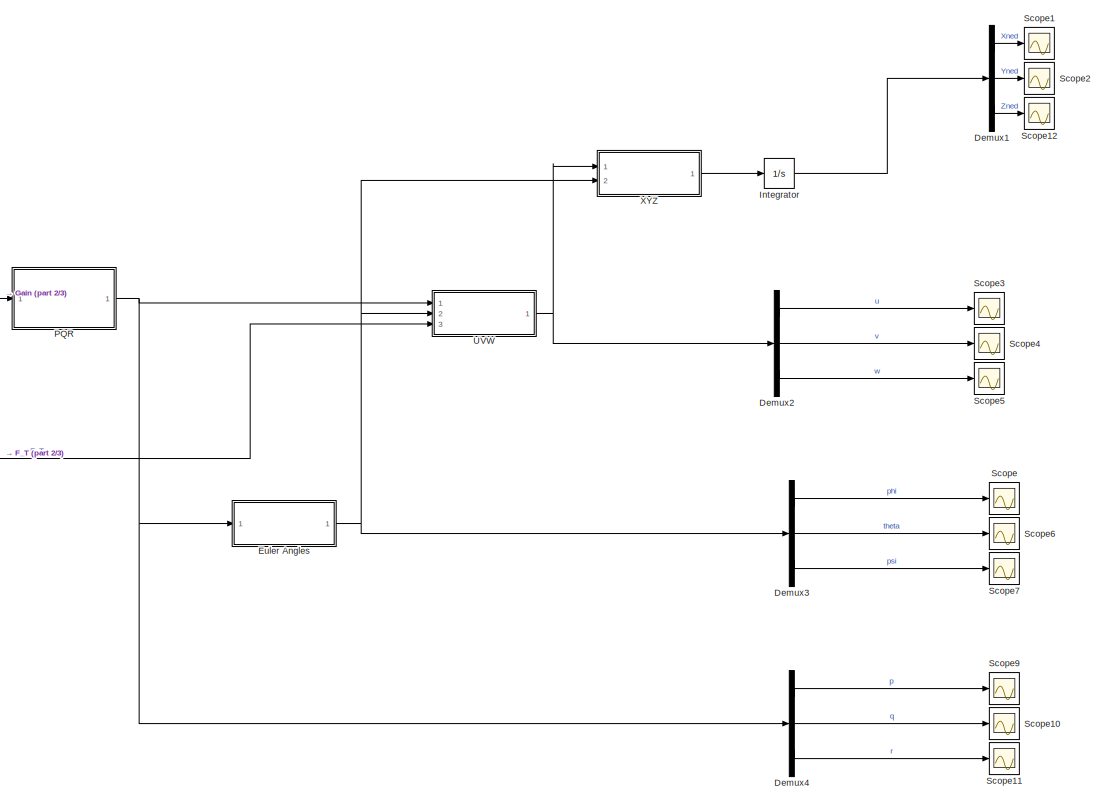
[diagram: root canvas - part 1/3, right side, full height]
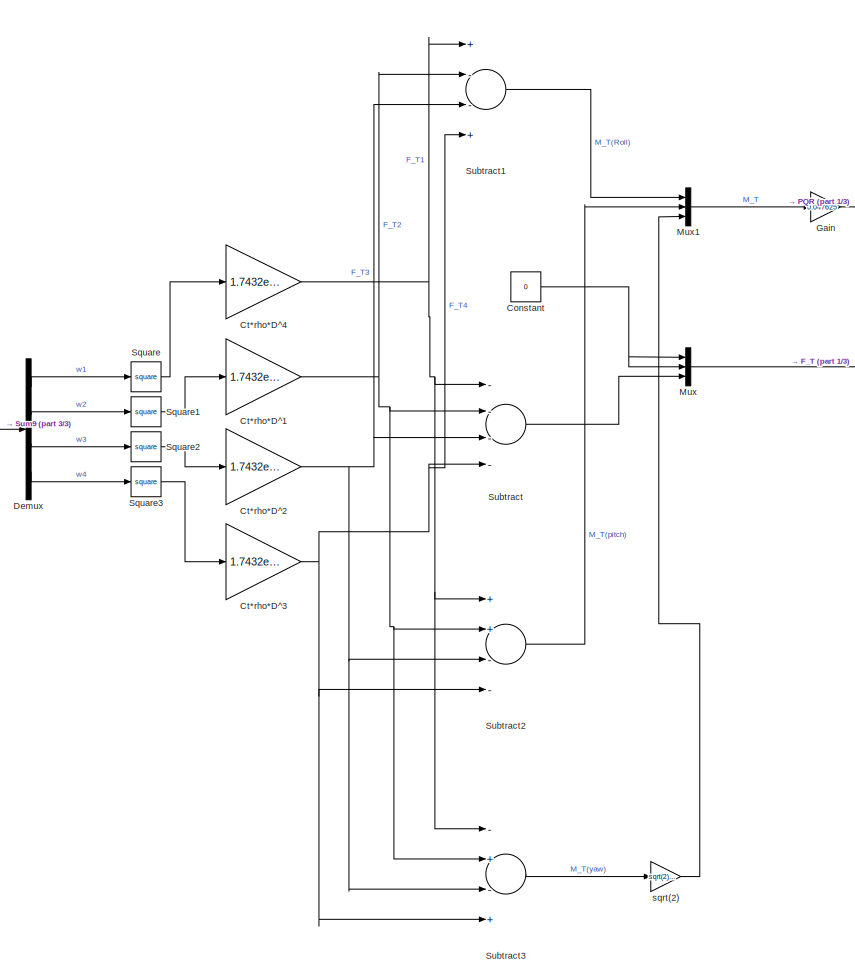
[diagram: root canvas - part 2/3, center side, full height]
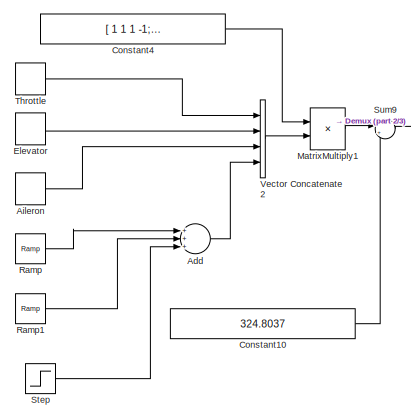
[diagram: root canvas - part 3/3, middle left region]
MODEL slx_c13ecf1b8bd2
KIND model
CONFIG AbsTol = auto
CONFIG EnableMultiTasking = off
CONFIG FixedStep = auto
CONFIG MaxStep = auto
CONFIG MinStep = auto
CONFIG RelTol = 1e-3
CONFIG SampleTimeConstraint = Unconstrained
CONFIG Solver = VariableStepAuto
CONFIG SolverName = VariableStepAuto
CONFIG StartTime = 0.0
CONFIG StopTime = 6
BLOCK [Sum] Add
  InputSameDT = off
  Inputs = +++
  OutDataTypeStr = Inherit: Inherit via internal rule
  Ports = [3, 1]
  SaturateOnIntegerOverflow = off
BLOCK [DiscretePulseGenerator] Aileron
  Amplitude = 0
  Period = 8
  PhaseDelay = 1
  Ports = [0, 1]
  PulseType = Time based
  PulseWidth = 50
BLOCK [Constant] Constant
  Value = 0
BLOCK [Constant] Constant10
  Value = 324.8037
BLOCK [Constant] Constant4
  Value = [ 1 1 1 -1; 1 1 -1 1; 1 -1 -1 -1; -1 1  -1 1]
  VectorParams1D = off
BLOCK [Gain] Ct*rho*D^1
  Gain = 1.7432e-06
  OutDataTypeStr = Inherit: Inherit via internal rule
  ParamDataTypeStr = Inherit: Inherit via internal rule
  SaturateOnIntegerOverflow = off
BLOCK [Gain] Ct*rho*D^2
  Gain = 1.7432e-06
  OutDataTypeStr = Inherit: Inherit via internal rule
  ParamDataTypeStr = Inherit: Inherit via internal rule
  SaturateOnIntegerOverflow = off
BLOCK [Gain] Ct*rho*D^3
  Gain = 1.7432e-06
  OutDataTypeStr = Inherit: Inherit via internal rule
  ParamDataTypeStr = Inherit: Inherit via internal rule
  SaturateOnIntegerOverflow = off
BLOCK [Gain] Ct*rho*D^4
  Gain = 1.7432e-06
  OutDataTypeStr = Inherit: Inherit via internal rule
  ParamDataTypeStr = Inherit: Inherit via internal rule
  SaturateOnIntegerOverflow = off
BLOCK [Demux] Demux
  DisplayOption = bar
  Ports = [1, 4]
BLOCK [Demux] Demux1
  DisplayOption = bar
  Outputs = 3
  Ports = [1, 3]
BLOCK [Demux] Demux2
  DisplayOption = bar
  Outputs = 3
  Ports = [1, 3]
BLOCK [Demux] Demux3
  DisplayOption = bar
  Outputs = 3
  Ports = [1, 3]
BLOCK [Demux] Demux4
  DisplayOption = bar
  Outputs = 3
  Ports = [1, 3]
BLOCK [DiscretePulseGenerator] Elevator
  Amplitude = 0
  Period = 8
  PhaseDelay = 1
  Ports = [0, 1]
  PulseType = Time based
  PulseWidth = 50
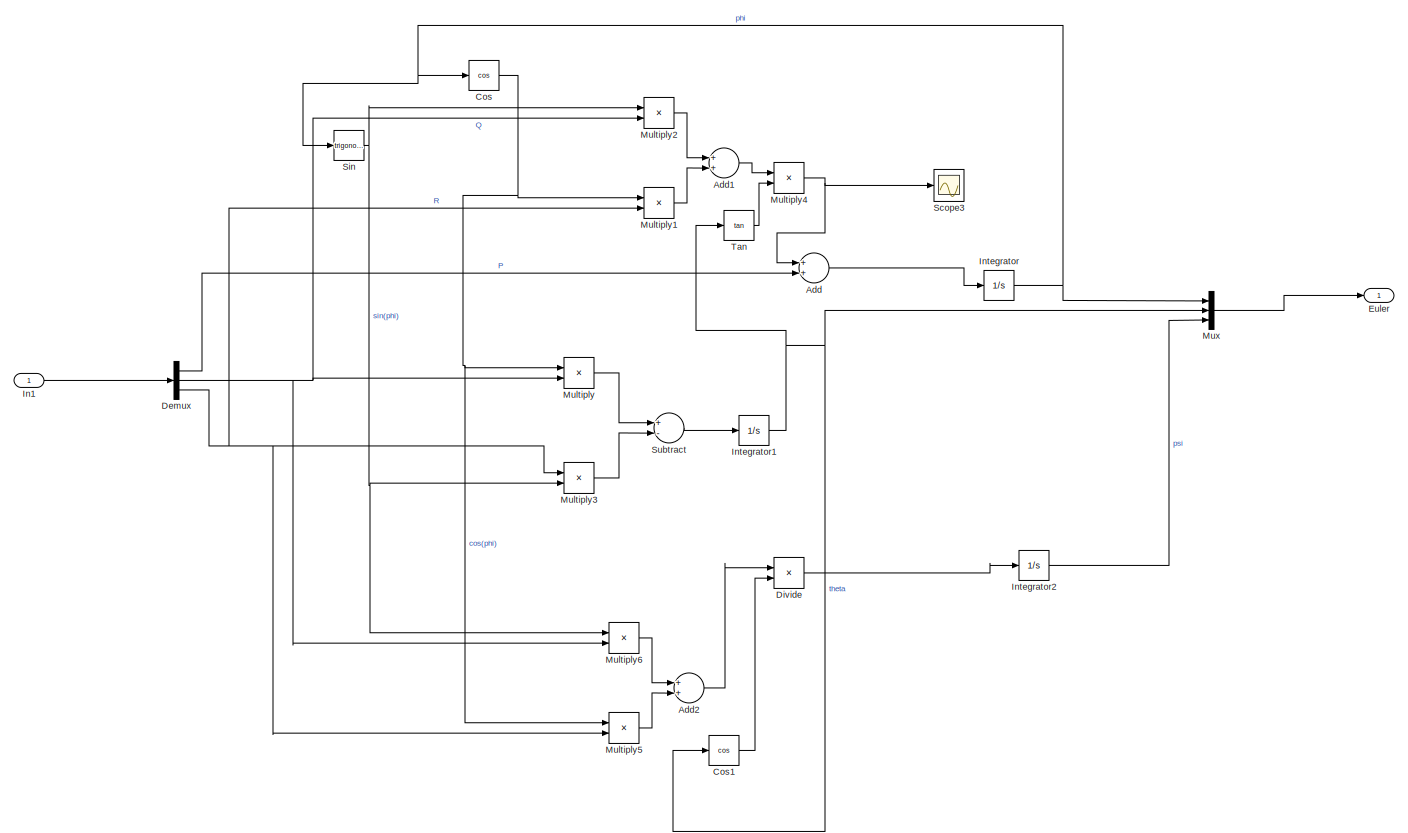
[diagram: Euler Angles - part 1/1, most of the canvas]
BLOCK [SubSystem] Euler Angles
  Ports = [1, 1]
  RequestExecContextInheritance = off
BLOCK [Sum] Euler Angles/Add
  InputSameDT = off
  OutDataTypeStr = Inherit: Inherit via internal rule
  Ports = [2, 1]
  SaturateOnIntegerOverflow = off
BLOCK [Sum] Euler Angles/Add1
  InputSameDT = off
  OutDataTypeStr = Inherit: Inherit via internal rule
  Ports = [2, 1]
  SaturateOnIntegerOverflow = off
BLOCK [Sum] Euler Angles/Add2
  InputSameDT = off
  OutDataTypeStr = Inherit: Inherit via internal rule
  Ports = [2, 1]
  SaturateOnIntegerOverflow = off
BLOCK [Trigonometry] Euler Angles/Cos
  Operator = cos
  Ports = [1, 1]
BLOCK [Trigonometry] Euler Angles/Cos1
  Operator = cos
  Ports = [1, 1]
BLOCK [Demux] Euler Angles/Demux
  DisplayOption = bar
  Outputs = 3
  Ports = [1, 3]
BLOCK [Product] Euler Angles/Divide
  InputSameDT = off
  Inputs = */
  OutDataTypeStr = Inherit: Inherit via internal rule
  Ports = [2, 1]
  RndMeth = Floor
  SaturateOnIntegerOverflow = off
BLOCK [Outport] Euler Angles/Euler
  IconDisplay = Port number
  VectorParamsAs1DForOutWhenUnconnected = off
BLOCK [Inport] Euler Angles/In1
  IconDisplay = Port number
BLOCK [Integrator] Euler Angles/Integrator
  Ports = [1, 1]
BLOCK [Integrator] Euler Angles/Integrator1
  Ports = [1, 1]
BLOCK [Integrator] Euler Angles/Integrator2
  Ports = [1, 1]
BLOCK [Product] Euler Angles/Multiply
  InputSameDT = off
  OutDataTypeStr = Inherit: Inherit via internal rule
  Ports = [2, 1]
  RndMeth = Floor
  SaturateOnIntegerOverflow = off
BLOCK [Product] Euler Angles/Multiply1
  InputSameDT = off
  OutDataTypeStr = Inherit: Inherit via internal rule
  Ports = [2, 1]
  RndMeth = Floor
  SaturateOnIntegerOverflow = off
BLOCK [Product] Euler Angles/Multiply2
  InputSameDT = off
  OutDataTypeStr = Inherit: Inherit via internal rule
  Ports = [2, 1]
  RndMeth = Floor
  SaturateOnIntegerOverflow = off
BLOCK [Product] Euler Angles/Multiply3
  InputSameDT = off
  OutDataTypeStr = Inherit: Inherit via internal rule
  Ports = [2, 1]
  RndMeth = Floor
  SaturateOnIntegerOverflow = off
BLOCK [Product] Euler Angles/Multiply4
  InputSameDT = off
  OutDataTypeStr = Inherit: Inherit via internal rule
  Ports = [2, 1]
  RndMeth = Floor
  SaturateOnIntegerOverflow = off
BLOCK [Product] Euler Angles/Multiply5
  InputSameDT = off
  OutDataTypeStr = Inherit: Inherit via internal rule
  Ports = [2, 1]
  RndMeth = Floor
  SaturateOnIntegerOverflow = off
BLOCK [Product] Euler Angles/Multiply6
  InputSameDT = off
  OutDataTypeStr = Inherit: Inherit via internal rule
  Ports = [2, 1]
  RndMeth = Floor
  SaturateOnIntegerOverflow = off
BLOCK [Mux] Euler Angles/Mux
  DisplayOption = bar
  Inputs = 3
  Ports = [3, 1]
BLOCK [Scope] Euler Angles/Scope3
  Floating = off
  NumInputPorts = 1
  Ports = [1]
  ScopeSpecificationString = Simulink.scopes.TimeScopeBlockCfg('CurrentConfiguration', extmgr.ConfigurationSet(extmgr.Configuration('Core','General UI',true),extmgr.Configuration('Core','Source UI',true),extmgr.Configuration('Sources','WiredSimulink',true,'DataLoggingVariableName','ScopeData15'),extmgr.Configuration('Visuals','Time Domain',true,'SerializedDisplays',{struct('MinYLimReal','-1.00000','MaxYLimReal','1.00000','YLa...<+1369ch>
BLOCK [Trigonometry] Euler Angles/Sin
  Ports = [1, 1]
BLOCK [Sum] Euler Angles/Subtract
  InputSameDT = off
  Inputs = +-
  OutDataTypeStr = Inherit: Inherit via internal rule
  Ports = [2, 1]
  SaturateOnIntegerOverflow = off
BLOCK [Trigonometry] Euler Angles/Tan
  Operator = tan
  Ports = [1, 1]
BLOCK [Gain] Gain
  Gain = 0.047625
  OutDataTypeStr = Inherit: Inherit via internal rule
  ParamDataTypeStr = Inherit: Inherit via internal rule
  SaturateOnIntegerOverflow = off
BLOCK [Integrator] Integrator
  Ports = [1, 1]
BLOCK [Product] MatrixMultiply1
  InputSameDT = off
  Multiplication = Matrix(*)
  OutDataTypeStr = Inherit: Inherit via internal rule
  Ports = [2, 1]
  RndMeth = Floor
  SaturateOnIntegerOverflow = off
BLOCK [Mux] Mux
  DisplayOption = bar
  Inputs = 3
  Ports = [3, 1]
BLOCK [Mux] Mux1
  DisplayOption = bar
  Inputs = 3
  Ports = [3, 1]
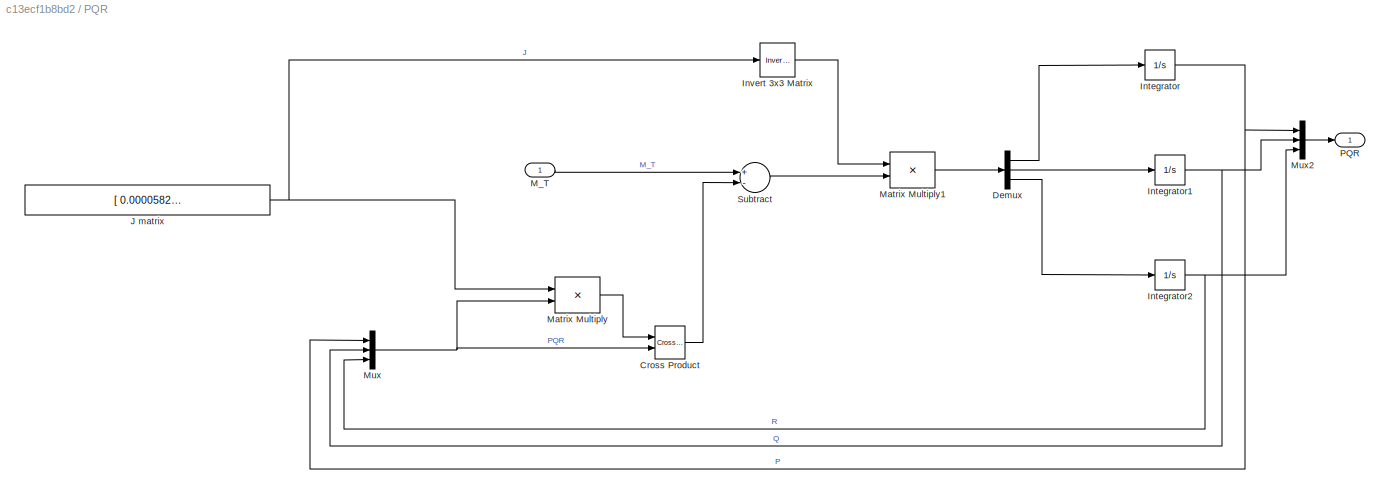
BLOCK [SubSystem] PQR
  Ports = [1, 1]
  RequestExecContextInheritance = off
BLOCK [Reference] PQR/Cross Product  REF=vrlib/Utilities/Cross Product
  Ports = [2, 1]
  SourceBlock = vrlib/Utilities/Cross Product
  SourceProductBaseCode = SL
  SourceProductName = Simulink
  SourceType = Cross Product
BLOCK [Demux] PQR/Demux
  DisplayOption = bar
  Outputs = 3
  Ports = [1, 3]
BLOCK [Integrator] PQR/Integrator
  Ports = [1, 1]
BLOCK [Integrator] PQR/Integrator1
  Ports = [1, 1]
BLOCK [Integrator] PQR/Integrator2
  Ports = [1, 1]
BLOCK [Reference] PQR/Invert 3x3 Matrix  REF=aerolibutil/Invert 
3x3 Matrix
  Ports = [1, 1]
  SourceBlock = aerolibutil/Invert \n3x3 Matrix
  SourceProductBaseCode = AE
  SourceProductName = Aerospace Blockset
  SourceType = Invert 3x3 Matrix
BLOCK [Constant] PQR/J matrix
  Value = [ 0.0000582857 0 0; 0 0.0000716914 0; 0 0 0.0001];
BLOCK [Inport] PQR/M_T
  IconDisplay = Port number
BLOCK [Product] PQR/Matrix Multiply
  InputSameDT = off
  Multiplication = Matrix(*)
  OutDataTypeStr = Inherit: Inherit via internal rule
  Ports = [2, 1]
  RndMeth = Floor
  SaturateOnIntegerOverflow = off
BLOCK [Product] PQR/Matrix Multiply1
  InputSameDT = off
  Multiplication = Matrix(*)
  OutDataTypeStr = Inherit: Inherit via internal rule
  Ports = [2, 1]
  RndMeth = Floor
  SaturateOnIntegerOverflow = off
BLOCK [Mux] PQR/Mux
  DisplayOption = bar
  Inputs = 3
  Ports = [3, 1]
BLOCK [Mux] PQR/Mux2
  DisplayOption = bar
  Inputs = 3
  Ports = [3, 1]
BLOCK [Outport] PQR/PQR
  IconDisplay = Port number
  VectorParamsAs1DForOutWhenUnconnected = off
BLOCK [Sum] PQR/Subtract
  InputSameDT = off
  Inputs = +-
  OutDataTypeStr = Inherit: Inherit via internal rule
  Ports = [2, 1]
  SaturateOnIntegerOverflow = off
BLOCK [Reference] Ramp  REF=simulink/Sources/Ramp
  Ports = [0, 1]
  SourceBlock = simulink/Sources/Ramp
  SourceProductBaseCode = SL
  SourceProductName = Simulink
  SourceType = Ramp
BLOCK [Reference] Ramp1  REF=simulink/Sources/Ramp
  Ports = [0, 1]
  SourceBlock = simulink/Sources/Ramp
  SourceProductBaseCode = SL
  SourceProductName = Simulink
  SourceType = Ramp
BLOCK [Scope] Scope
  Floating = off
  NumInputPorts = 1
  Ports = [1]
  ScopeSpecificationString = Simulink.scopes.TimeScopeBlockCfg('CurrentConfiguration', extmgr.ConfigurationSet(extmgr.Configuration('Core','General UI',true),extmgr.Configuration('Core','Source UI',true),extmgr.Configuration('Sources','WiredSimulink',true,'DataLoggingVariableName','ScopeData6'),extmgr.Configuration('Visuals','Time Domain',true,'SerializedDisplays',{struct('MinYLimReal','-0.0000000000000005','MaxYLimReal','0.0...<+1450ch>
BLOCK [Scope] Scope1
  Floating = off
  NumInputPorts = 1
  Ports = [1]
  ScopeSpecificationString = Simulink.scopes.TimeScopeBlockCfg('CurrentConfiguration', extmgr.ConfigurationSet(extmgr.Configuration('Core','General UI',true),extmgr.Configuration('Core','Source UI',true),extmgr.Configuration('Sources','WiredSimulink',true),extmgr.Configuration('Visuals','Time Domain',true,'SerializedDisplays',{struct('MinYLimReal','-0.00000000000034','MaxYLimReal','0.00000000000004','YLabelReal','','MinYLimMa...<+1396ch>
BLOCK [Scope] Scope10
  Floating = off
  NumInputPorts = 1
  Ports = [1]
  ScopeSpecificationString = Simulink.scopes.TimeScopeBlockCfg('CurrentConfiguration', extmgr.ConfigurationSet(extmgr.Configuration('Core','General UI',true),extmgr.Configuration('Core','Source UI',true),extmgr.Configuration('Sources','WiredSimulink',true,'DataLoggingVariableName','ScopeData10'),extmgr.Configuration('Visuals','Time Domain',true,'SerializedDisplays',{struct('MinYLimReal','-0.0000000000000015','MaxYLimReal','0....<+1449ch>
BLOCK [Scope] Scope11
  Floating = off
  NumInputPorts = 1
  Ports = [1]
  ScopeSpecificationString = Simulink.scopes.TimeScopeBlockCfg('CurrentConfiguration', extmgr.ConfigurationSet(extmgr.Configuration('Core','General UI',true),extmgr.Configuration('Core','Source UI',true),extmgr.Configuration('Sources','WiredSimulink',true,'DataLoggingVariableName','ScopeData11'),extmgr.Configuration('Visuals','Time Domain',true,'SerializedDisplays',{struct('MinYLimReal','-0.03632','MaxYLimReal','0.32691','YLa...<+1361ch>
BLOCK [Scope] Scope12
  Floating = off
  NumInputPorts = 1
  Ports = [1]
  ScopeSpecificationString = Simulink.scopes.TimeScopeBlockCfg('CurrentConfiguration', extmgr.ConfigurationSet(extmgr.Configuration('Core','General UI',true),extmgr.Configuration('Core','Source UI',true),extmgr.Configuration('Sources','WiredSimulink',true,'DataLoggingVariableName','ScopeData1'),extmgr.Configuration('Visuals','Time Domain',true,'SerializedDisplays',{struct('MinYLimReal','-0.00409','MaxYLimReal','0.03683','YLab...<+1363ch>
BLOCK [Scope] Scope2
  Floating = off
  NumInputPorts = 1
  Ports = [1]
  ScopeSpecificationString = Simulink.scopes.TimeScopeBlockCfg('CurrentConfiguration', extmgr.ConfigurationSet(extmgr.Configuration('Core','General UI',true),extmgr.Configuration('Core','Source UI',true),extmgr.Configuration('Sources','WiredSimulink',true,'DataLoggingVariableName','ScopeData2'),extmgr.Configuration('Visuals','Time Domain',true,'SerializedDisplays',{struct('MinYLimReal','-0.0000000000000075','MaxYLimReal','0.0...<+1451ch>
BLOCK [Scope] Scope3
  Floating = off
  NumInputPorts = 1
  Ports = [1]
  ScopeSpecificationString = Simulink.scopes.TimeScopeBlockCfg('CurrentConfiguration', extmgr.ConfigurationSet(extmgr.Configuration('Core','General UI',true),extmgr.Configuration('Core','Source UI',true),extmgr.Configuration('Sources','WiredSimulink',true,'DataLoggingVariableName','ScopeData3'),extmgr.Configuration('Visuals','Time Domain',true,'SerializedDisplays',{struct('MinYLimReal','-0.00000000000017','MaxYLimReal','0.000...<+1432ch>
BLOCK [Scope] Scope4
  Floating = off
  NumInputPorts = 1
  Ports = [1]
  ScopeSpecificationString = Simulink.scopes.TimeScopeBlockCfg('CurrentConfiguration', extmgr.ConfigurationSet(extmgr.Configuration('Core','General UI',true),extmgr.Configuration('Core','Source UI',true),extmgr.Configuration('Sources','WiredSimulink',true,'DataLoggingVariableName','ScopeData4'),extmgr.Configuration('Visuals','Time Domain',true,'SerializedDisplays',{struct('MinYLimReal','-0.00000000000001','MaxYLimReal','0.000...<+1432ch>
BLOCK [Scope] Scope5
  Floating = off
  NumInputPorts = 1
  Ports = [1]
  ScopeSpecificationString = Simulink.scopes.TimeScopeBlockCfg('CurrentConfiguration', extmgr.ConfigurationSet(extmgr.Configuration('Core','General UI',true),extmgr.Configuration('Core','Source UI',true),extmgr.Configuration('Sources','WiredSimulink',true,'DataLoggingVariableName','ScopeData5'),extmgr.Configuration('Visuals','Time Domain',true,'SerializedDisplays',{struct('MinYLimReal','-0.00136','MaxYLimReal','0.01223','YLab...<+1388ch>
BLOCK [Scope] Scope6
  Floating = off
  NumInputPorts = 1
  Ports = [1]
  ScopeSpecificationString = Simulink.scopes.TimeScopeBlockCfg('CurrentConfiguration', extmgr.ConfigurationSet(extmgr.Configuration('Core','General UI',true),extmgr.Configuration('Core','Source UI',true),extmgr.Configuration('Sources','WiredSimulink',true,'DataLoggingVariableName','ScopeData7'),extmgr.Configuration('Visuals','Time Domain',true,'SerializedDisplays',{struct('MinYLimReal','-0.0000000000000009','MaxYLimReal','0.0...<+1452ch>
BLOCK [Scope] Scope7
  Floating = off
  NumInputPorts = 1
  Ports = [1]
  ScopeSpecificationString = Simulink.scopes.TimeScopeBlockCfg('CurrentConfiguration', extmgr.ConfigurationSet(extmgr.Configuration('Core','General UI',true),extmgr.Configuration('Core','Source UI',true),extmgr.Configuration('Sources','WiredSimulink',true,'DataLoggingVariableName','ScopeData8'),extmgr.Configuration('Visuals','Time Domain',true,'SerializedDisplays',{struct('MinYLimReal','-0.08466','MaxYLimReal','0.76192','YLab...<+1393ch>
BLOCK [Scope] Scope9
  Floating = off
  NumInputPorts = 1
  Ports = [1]
  ScopeSpecificationString = Simulink.scopes.TimeScopeBlockCfg('CurrentConfiguration', extmgr.ConfigurationSet(extmgr.Configuration('Core','General UI',true),extmgr.Configuration('Core','Source UI',true),extmgr.Configuration('Sources','WiredSimulink',true,'DataLoggingVariableName','ScopeData9'),extmgr.Configuration('Visuals','Time Domain',true,'SerializedDisplays',{struct('MinYLimReal','-0.00000000000000004','MaxYLimReal','0....<+1456ch>
BLOCK [Math] Square
  Operator = square
  Ports = [1, 1]
BLOCK [Math] Square1
  Operator = square
  Ports = [1, 1]
BLOCK [Math] Square2
  Operator = square
  Ports = [1, 1]
BLOCK [Math] Square3
  Operator = square
  Ports = [1, 1]
BLOCK [Step] Step
  After = -.25*4
  SampleTime = 0
  Time = 5
BLOCK [Sum] Subtract
  InputSameDT = off
  Inputs = ----
  OutDataTypeStr = Inherit: Inherit via internal rule
  Ports = [4, 1]
  SaturateOnIntegerOverflow = off
BLOCK [Sum] Subtract1
  InputSameDT = off
  Inputs = +--+
  OutDataTypeStr = Inherit: Inherit via internal rule
  Ports = [4, 1]
  SaturateOnIntegerOverflow = off
BLOCK [Sum] Subtract2
  InputSameDT = off
  Inputs = ++--
  OutDataTypeStr = Inherit: Inherit via internal rule
  Ports = [4, 1]
  SaturateOnIntegerOverflow = off
BLOCK [Sum] Subtract3
  InputSameDT = off
  Inputs = -+-+
  OutDataTypeStr = Inherit: Inherit via internal rule
  Ports = [4, 1]
  SaturateOnIntegerOverflow = off
BLOCK [Sum] Sum9
  IconShape = round
  InputSameDT = off
  Inputs = |++
  OutDataTypeStr = Inherit: Inherit via internal rule
  Ports = [2, 1]
  SaturateOnIntegerOverflow = off
BLOCK [DiscretePulseGenerator] Throttle
  Amplitude = 0
  Period = 8
  PhaseDelay = 1
  Ports = [0, 1]
  PulseType = Time based
  PulseWidth = 50
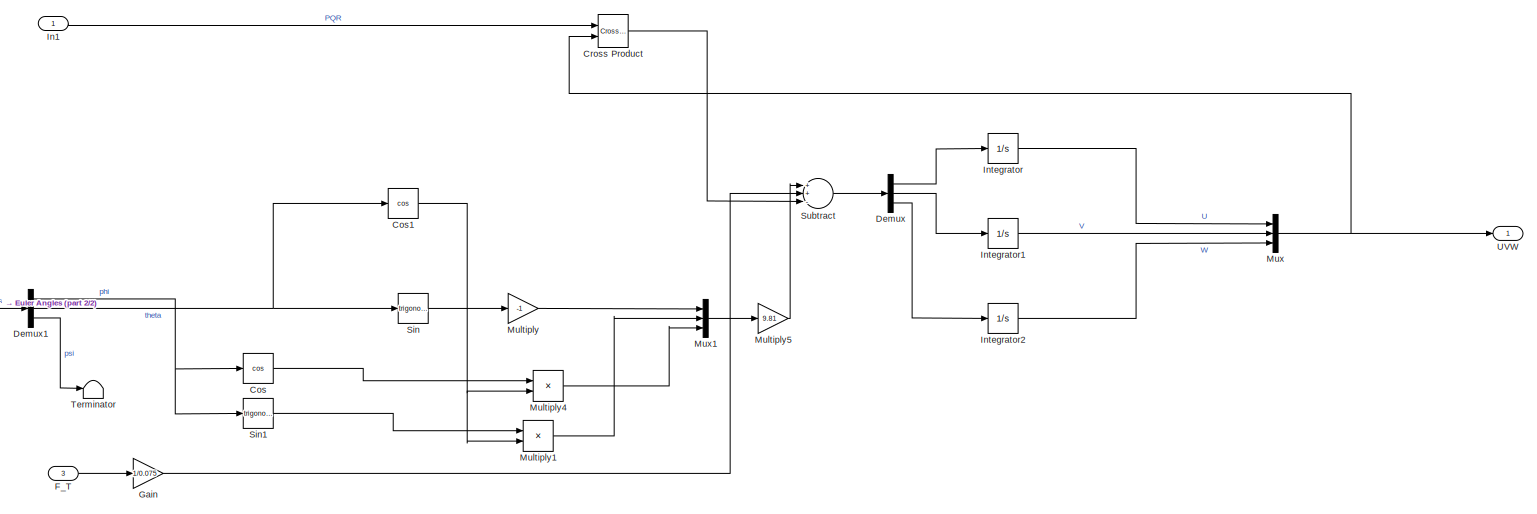
[diagram: UVW - part 1/2, most of the canvas]
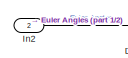
[diagram: UVW - part 2/2, middle left region]
BLOCK [SubSystem] UVW
  Ports = [3, 1]
  RequestExecContextInheritance = off
BLOCK [Trigonometry] UVW/Cos
  Operator = cos
  Ports = [1, 1]
BLOCK [Trigonometry] UVW/Cos1
  Operator = cos
  Ports = [1, 1]
BLOCK [Reference] UVW/Cross Product  REF=vrlib/Utilities/Cross Product
  Ports = [2, 1]
  SourceBlock = vrlib/Utilities/Cross Product
  SourceProductBaseCode = SL
  SourceProductName = Simulink
  SourceType = Cross Product
BLOCK [Demux] UVW/Demux
  DisplayOption = bar
  Outputs = 3
  Ports = [1, 3]
BLOCK [Demux] UVW/Demux1
  DisplayOption = bar
  Outputs = 3
  Ports = [1, 3]
BLOCK [Inport] UVW/F_T
  IconDisplay = Port number
  Port = 3
BLOCK [Gain] UVW/Gain
  Gain = 1/0.075
  OutDataTypeStr = Inherit: Inherit via internal rule
  ParamDataTypeStr = Inherit: Inherit via internal rule
  SaturateOnIntegerOverflow = off
BLOCK [Inport] UVW/In1
  IconDisplay = Port number
BLOCK [Inport] UVW/In2
  IconDisplay = Port number
  Port = 2
BLOCK [Integrator] UVW/Integrator
  Ports = [1, 1]
BLOCK [Integrator] UVW/Integrator1
  Ports = [1, 1]
BLOCK [Integrator] UVW/Integrator2
  Ports = [1, 1]
BLOCK [Gain] UVW/Multiply
  Gain = -1
  OutDataTypeStr = Inherit: Inherit via internal rule
  ParamDataTypeStr = Inherit: Inherit via internal rule
  SaturateOnIntegerOverflow = off
BLOCK [Product] UVW/Multiply1
  InputSameDT = off
  OutDataTypeStr = Inherit: Inherit via internal rule
  Ports = [2, 1]
  RndMeth = Floor
  SaturateOnIntegerOverflow = off
BLOCK [Product] UVW/Multiply4
  InputSameDT = off
  OutDataTypeStr = Inherit: Inherit via internal rule
  Ports = [2, 1]
  RndMeth = Floor
  SaturateOnIntegerOverflow = off
BLOCK [Gain] UVW/Multiply5
  Gain = 9.81
  OutDataTypeStr = Inherit: Inherit via internal rule
  ParamDataTypeStr = Inherit: Inherit via internal rule
  SaturateOnIntegerOverflow = off
BLOCK [Mux] UVW/Mux
  DisplayOption = bar
  Inputs = 3
  Ports = [3, 1]
BLOCK [Mux] UVW/Mux1
  DisplayOption = bar
  Inputs = 3
  Ports = [3, 1]
BLOCK [Trigonometry] UVW/Sin
  Ports = [1, 1]
BLOCK [Trigonometry] UVW/Sin1
  Ports = [1, 1]
BLOCK [Sum] UVW/Subtract
  InputSameDT = off
  Inputs = ++-
  OutDataTypeStr = Inherit: Inherit via internal rule
  Ports = [3, 1]
  SaturateOnIntegerOverflow = off
BLOCK [Terminator] UVW/Terminator
BLOCK [Outport] UVW/UVW
  IconDisplay = Port number
  VectorParamsAs1DForOutWhenUnconnected = off
BLOCK [Concatenate] Vector Concatenate2
  NumInputs = 4
  Ports = [4, 1]
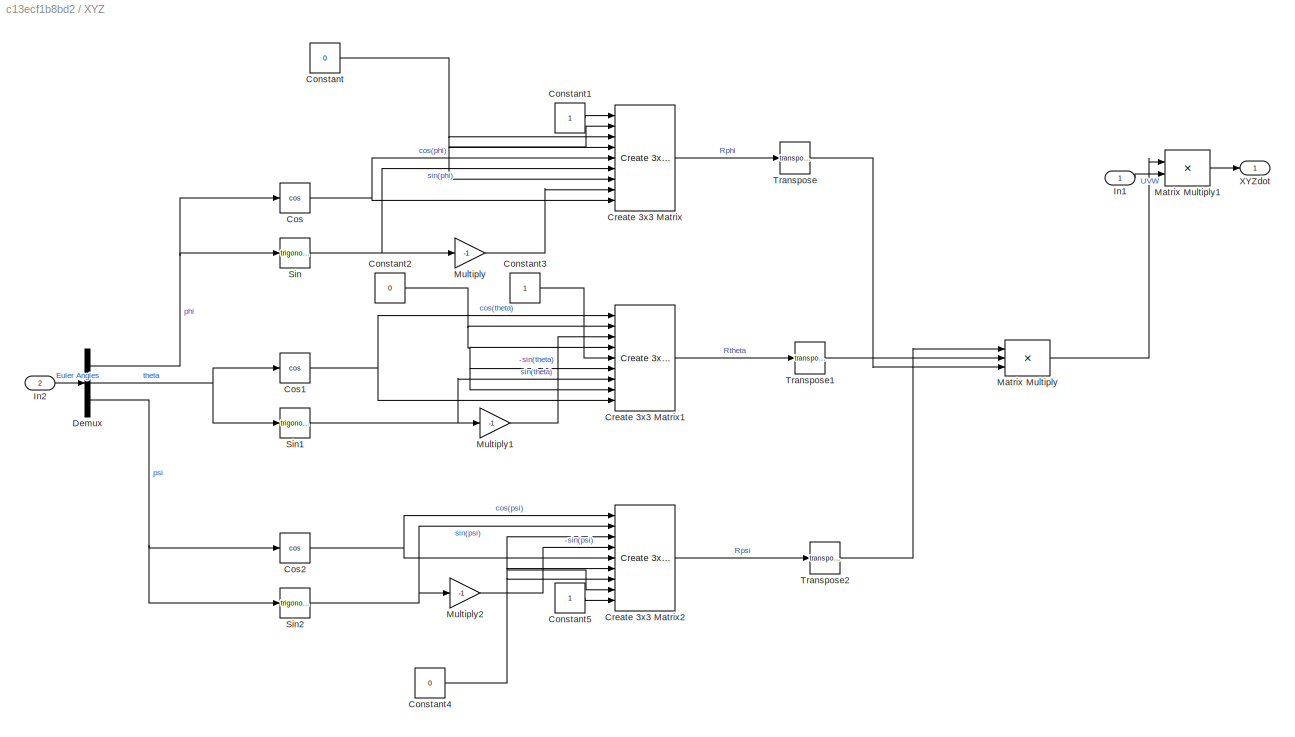
BLOCK [SubSystem] XYZ
  Ports = [2, 1]
  RequestExecContextInheritance = off
BLOCK [Constant] XYZ/Constant
  Value = 0
BLOCK [Constant] XYZ/Constant1
BLOCK [Constant] XYZ/Constant2
  Value = 0
BLOCK [Constant] XYZ/Constant3
BLOCK [Constant] XYZ/Constant4
  Value = 0
BLOCK [Constant] XYZ/Constant5
BLOCK [Trigonometry] XYZ/Cos
  Operator = cos
  Ports = [1, 1]
BLOCK [Trigonometry] XYZ/Cos1
  Operator = cos
  Ports = [1, 1]
BLOCK [Trigonometry] XYZ/Cos2
  Operator = cos
  Ports = [1, 1]
BLOCK [Reference] XYZ/Create 3x3 Matrix  REF=sharedutil/Create 3x3 Matrix
  Ports = [9, 1]
  SourceBlock = sharedutil/Create 3x3 Matrix
  SourceProductBaseCode = AE
  SourceProductName = Aerospace Blockset
  SourceType = Create 3x3 Matrix
BLOCK [Reference] XYZ/Create 3x3 Matrix1  REF=sharedutil/Create 3x3 Matrix
  Ports = [9, 1]
  SourceBlock = sharedutil/Create 3x3 Matrix
  SourceProductBaseCode = AE
  SourceProductName = Aerospace Blockset
  SourceType = Create 3x3 Matrix
BLOCK [Reference] XYZ/Create 3x3 Matrix2  REF=sharedutil/Create 3x3 Matrix
  Ports = [9, 1]
  SourceBlock = sharedutil/Create 3x3 Matrix
  SourceProductBaseCode = AE
  SourceProductName = Aerospace Blockset
  SourceType = Create 3x3 Matrix
BLOCK [Demux] XYZ/Demux
  DisplayOption = bar
  Outputs = 3
  Ports = [1, 3]
BLOCK [Inport] XYZ/In1
  IconDisplay = Port number
BLOCK [Inport] XYZ/In2
  IconDisplay = Port number
  Port = 2
BLOCK [Product] XYZ/Matrix Multiply
  InputSameDT = off
  Inputs = 3
  Multiplication = Matrix(*)
  OutDataTypeStr = Inherit: Inherit via internal rule
  Ports = [3, 1]
  RndMeth = Floor
  SaturateOnIntegerOverflow = off
BLOCK [Product] XYZ/Matrix Multiply1
  InputSameDT = off
  Multiplication = Matrix(*)
  OutDataTypeStr = Inherit: Inherit via internal rule
  Ports = [2, 1]
  RndMeth = Floor
  SaturateOnIntegerOverflow = off
BLOCK [Gain] XYZ/Multiply
  Gain = -1
  OutDataTypeStr = Inherit: Inherit via internal rule
  ParamDataTypeStr = Inherit: Inherit via internal rule
  SaturateOnIntegerOverflow = off
BLOCK [Gain] XYZ/Multiply1
  Gain = -1
  OutDataTypeStr = Inherit: Inherit via internal rule
  ParamDataTypeStr = Inherit: Inherit via internal rule
  SaturateOnIntegerOverflow = off
BLOCK [Gain] XYZ/Multiply2
  Gain = -1
  OutDataTypeStr = Inherit: Inherit via internal rule
  ParamDataTypeStr = Inherit: Inherit via internal rule
  SaturateOnIntegerOverflow = off
BLOCK [Trigonometry] XYZ/Sin
  Ports = [1, 1]
BLOCK [Trigonometry] XYZ/Sin1
  Ports = [1, 1]
BLOCK [Trigonometry] XYZ/Sin2
  Ports = [1, 1]
BLOCK [Math] XYZ/Transpose
  Operator = transpose
  Ports = [1, 1]
  SignedPower = off
BLOCK [Math] XYZ/Transpose1
  Operator = transpose
  Ports = [1, 1]
  SignedPower = off
BLOCK [Math] XYZ/Transpose2
  Operator = transpose
  Ports = [1, 1]
  SignedPower = off
BLOCK [Outport] XYZ/XYZdot
  IconDisplay = Port number
  VectorParamsAs1DForOutWhenUnconnected = off
BLOCK [Gain] sqrt(2)
  Gain = sqrt(2)*0.047625
  OutDataTypeStr = Inherit: Inherit via internal rule
  ParamDataTypeStr = Inherit: Inherit via internal rule
  SaturateOnIntegerOverflow = off
LINE Add:1 -> Vector Concatenate2:4
LINE Aileron:1 -> Vector Concatenate2:3
LINE Constant10:1 -> Sum9:2
LINE Constant4:1 -> MatrixMultiply1:1
NET Constant:1 -> Mux:1, Mux:2
NET Ct*rho*D^1:1 -> Subtract1:2, Subtract2:2, Subtract3:2, Subtract:2
NET Ct*rho*D^2:1 -> Subtract1:3, Subtract2:3, Subtract3:3, Subtract:3
NET Ct*rho*D^3:1 -> Subtract1:4, Subtract2:4, Subtract3:4, Subtract:4
NET Ct*rho*D^4:1 -> Subtract1:1, Subtract2:1, Subtract3:1, Subtract:1
LINE Demux1:1 -> Scope1:1
LINE Demux1:2 -> Scope2:1
LINE Demux1:3 -> Scope12:1
LINE Demux2:1 -> Scope3:1
LINE Demux2:2 -> Scope4:1
LINE Demux2:3 -> Scope5:1
LINE Demux3:1 -> Scope:1
LINE Demux3:2 -> Scope6:1
LINE Demux3:3 -> Scope7:1
LINE Demux4:1 -> Scope9:1
LINE Demux4:2 -> Scope10:1
LINE Demux4:3 -> Scope11:1
LINE Demux:1 -> Square:1
LINE Demux:2 -> Square1:1
LINE Demux:3 -> Square2:1
LINE Demux:4 -> Square3:1
LINE Elevator:1 -> Vector Concatenate2:2
LINE Euler Angles/Add1:1 -> Euler Angles/Multiply4:1
LINE Euler Angles/Add2:1 -> Euler Angles/Divide:1
LINE Euler Angles/Add:1 -> Euler Angles/Integrator:1
LINE Euler Angles/Cos1:1 -> Euler Angles/Divide:2
NET Euler Angles/Cos:1 -> Euler Angles/Multiply1:1, Euler Angles/Multiply5:1, Euler Angles/Multiply:1
LINE Euler Angles/Demux:1 -> Euler Angles/Add:2
NET Euler Angles/Demux:2 -> Euler Angles/Multiply2:2, Euler Angles/Multiply6:2, Euler Angles/Multiply:2
NET Euler Angles/Demux:3 -> Euler Angles/Multiply1:2, Euler Angles/Multiply3:1, Euler Angles/Multiply5:2
LINE Euler Angles/Divide:1 -> Euler Angles/Integrator2:1
LINE Euler Angles/In1:1 -> Euler Angles/Demux:1
NET Euler Angles/Integrator1:1 -> Euler Angles/Cos1:1, Euler Angles/Mux:2, Euler Angles/Tan:1
LINE Euler Angles/Integrator2:1 -> Euler Angles/Mux:3
NET Euler Angles/Integrator:1 -> Euler Angles/Cos:1, Euler Angles/Mux:1, Euler Angles/Sin:1
LINE Euler Angles/Multiply1:1 -> Euler Angles/Add1:2
LINE Euler Angles/Multiply2:1 -> Euler Angles/Add1:1
LINE Euler Angles/Multiply3:1 -> Euler Angles/Subtract:2
NET Euler Angles/Multiply4:1 -> Euler Angles/Add:1, Euler Angles/Scope3:1
LINE Euler Angles/Multiply5:1 -> Euler Angles/Add2:2
LINE Euler Angles/Multiply6:1 -> Euler Angles/Add2:1
LINE Euler Angles/Multiply:1 -> Euler Angles/Subtract:1
LINE Euler Angles/Mux:1 -> Euler Angles/Euler:1
NET Euler Angles/Sin:1 -> Euler Angles/Multiply2:1, Euler Angles/Multiply3:2, Euler Angles/Multiply6:1
LINE Euler Angles/Subtract:1 -> Euler Angles/Integrator1:1
LINE Euler Angles/Tan:1 -> Euler Angles/Multiply4:2
NET Euler Angles:1 -> Demux3:1, UVW:2, XYZ:2
LINE Gain:1 -> PQR:1
LINE Integrator:1 -> Demux1:1
LINE MatrixMultiply1:1 -> Sum9:1
LINE Mux1:1 -> Gain:1
LINE Mux:1 -> UVW:3
LINE PQR/Cross Product:1 -> PQR/Subtract:2
LINE PQR/Demux:1 -> PQR/Integrator:1
LINE PQR/Demux:2 -> PQR/Integrator1:1
LINE PQR/Demux:3 -> PQR/Integrator2:1
NET PQR/Integrator1:1 -> PQR/Mux2:2, PQR/Mux:2
NET PQR/Integrator2:1 -> PQR/Mux2:3, PQR/Mux:3
NET PQR/Integrator:1 -> PQR/Mux2:1, PQR/Mux:1
LINE PQR/Invert 3x3 Matrix:1 -> PQR/Matrix Multiply1:1
NET PQR/J matrix:1 -> PQR/Invert 3x3 Matrix:1, PQR/Matrix Multiply:1
LINE PQR/M_T:1 -> PQR/Subtract:1
LINE PQR/Matrix Multiply1:1 -> PQR/Demux:1
LINE PQR/Matrix Multiply:1 -> PQR/Cross Product:1
LINE PQR/Mux2:1 -> PQR/PQR:1
NET PQR/Mux:1 -> PQR/Cross Product:2, PQR/Matrix Multiply:2
LINE PQR/Subtract:1 -> PQR/Matrix Multiply1:2
NET PQR:1 -> Demux4:1, Euler Angles:1, UVW:1
LINE Ramp1:1 -> Add:2
LINE Ramp:1 -> Add:1
LINE Square1:1 -> Ct*rho*D^1:1
LINE Square2:1 -> Ct*rho*D^2:1
LINE Square3:1 -> Ct*rho*D^3:1
LINE Square:1 -> Ct*rho*D^4:1
LINE Step:1 -> Add:3
LINE Subtract1:1 -> Mux1:1
LINE Subtract2:1 -> Mux1:2
LINE Subtract3:1 -> sqrt(2):1
LINE Subtract:1 -> Mux:3
LINE Sum9:1 -> Demux:1
LINE Throttle:1 -> Vector Concatenate2:1
NET UVW/Cos1:1 -> UVW/Multiply1:2, UVW/Multiply4:2
LINE UVW/Cos:1 -> UVW/Multiply4:1
LINE UVW/Cross Product:1 -> UVW/Subtract:3
NET UVW/Demux1:1 -> UVW/Cos:1, UVW/Sin1:1
NET UVW/Demux1:2 -> UVW/Cos1:1, UVW/Sin:1
LINE UVW/Demux1:3 -> UVW/Terminator:1
LINE UVW/Demux:1 -> UVW/Integrator:1
LINE UVW/Demux:2 -> UVW/Integrator1:1
LINE UVW/Demux:3 -> UVW/Integrator2:1
LINE UVW/F_T:1 -> UVW/Gain:1
LINE UVW/Gain:1 -> UVW/Subtract:2
LINE UVW/In1:1 -> UVW/Cross Product:1
LINE UVW/In2:1 -> UVW/Demux1:1
LINE UVW/Integrator1:1 -> UVW/Mux:2
LINE UVW/Integrator2:1 -> UVW/Mux:3
LINE UVW/Integrator:1 -> UVW/Mux:1
LINE UVW/Multiply1:1 -> UVW/Mux1:2
LINE UVW/Multiply4:1 -> UVW/Mux1:3
LINE UVW/Multiply5:1 -> UVW/Subtract:1
LINE UVW/Multiply:1 -> UVW/Mux1:1
LINE UVW/Mux1:1 -> UVW/Multiply5:1
NET UVW/Mux:1 -> UVW/Cross Product:2, UVW/UVW:1
LINE UVW/Sin1:1 -> UVW/Multiply1:1
LINE UVW/Sin:1 -> UVW/Multiply:1
LINE UVW/Subtract:1 -> UVW/Demux:1
NET UVW:1 -> Demux2:1, XYZ:1
LINE Vector Concatenate2:1 -> MatrixMultiply1:2
LINE XYZ/Constant1:1 -> XYZ/Create 3x3 Matrix:1
NET XYZ/Constant2:1 -> XYZ/Create 3x3 Matrix1:2, XYZ/Create 3x3 Matrix1:4, XYZ/Create 3x3 Matrix1:6, XYZ/Create 3x3 Matrix1:8
LINE XYZ/Constant3:1 -> XYZ/Create 3x3 Matrix1:5
NET XYZ/Constant4:1 -> XYZ/Create 3x3 Matrix2:3, XYZ/Create 3x3 Matrix2:6, XYZ/Create 3x3 Matrix2:7, XYZ/Create 3x3 Matrix2:8
LINE XYZ/Constant5:1 -> XYZ/Create 3x3 Matrix2:9
NET XYZ/Constant:1 -> XYZ/Create 3x3 Matrix:2, XYZ/Create 3x3 Matrix:3, XYZ/Create 3x3 Matrix:4, XYZ/Create 3x3 Matrix:7
NET XYZ/Cos1:1 -> XYZ/Create 3x3 Matrix1:1, XYZ/Create 3x3 Matrix1:9
NET XYZ/Cos2:1 -> XYZ/Create 3x3 Matrix2:1, XYZ/Create 3x3 Matrix2:5
NET XYZ/Cos:1 -> XYZ/Create 3x3 Matrix:5, XYZ/Create 3x3 Matrix:9
LINE XYZ/Create 3x3 Matrix1:1 -> XYZ/Transpose1:1
LINE XYZ/Create 3x3 Matrix2:1 -> XYZ/Transpose2:1
LINE XYZ/Create 3x3 Matrix:1 -> XYZ/Transpose:1
NET XYZ/Demux:1 -> XYZ/Cos:1, XYZ/Sin:1
NET XYZ/Demux:2 -> XYZ/Cos1:1, XYZ/Sin1:1
NET XYZ/Demux:3 -> XYZ/Cos2:1, XYZ/Sin2:1
LINE XYZ/In1:1 -> XYZ/Matrix Multiply1:2
LINE XYZ/In2:1 -> XYZ/Demux:1
LINE XYZ/Matrix Multiply1:1 -> XYZ/XYZdot:1
LINE XYZ/Matrix Multiply:1 -> XYZ/Matrix Multiply1:1
LINE XYZ/Multiply1:1 -> XYZ/Create 3x3 Matrix1:3
LINE XYZ/Multiply2:1 -> XYZ/Create 3x3 Matrix2:4
LINE XYZ/Multiply:1 -> XYZ/Create 3x3 Matrix:8
NET XYZ/Sin1:1 -> XYZ/Create 3x3 Matrix1:7, XYZ/Multiply1:1
NET XYZ/Sin2:1 -> XYZ/Create 3x3 Matrix2:2, XYZ/Multiply2:1
NET XYZ/Sin:1 -> XYZ/Create 3x3 Matrix:6, XYZ/Multiply:1
LINE XYZ/Transpose1:1 -> XYZ/Matrix Multiply:2
LINE XYZ/Transpose2:1 -> XYZ/Matrix Multiply:1
LINE XYZ/Transpose:1 -> XYZ/Matrix Multiply:3
LINE XYZ:1 -> Integrator:1
LINE sqrt(2):1 -> Mux1:3
note: NET lines group one-source signal fan-out (src -> all destinations, sorted); 1:1 wires keep LINE
